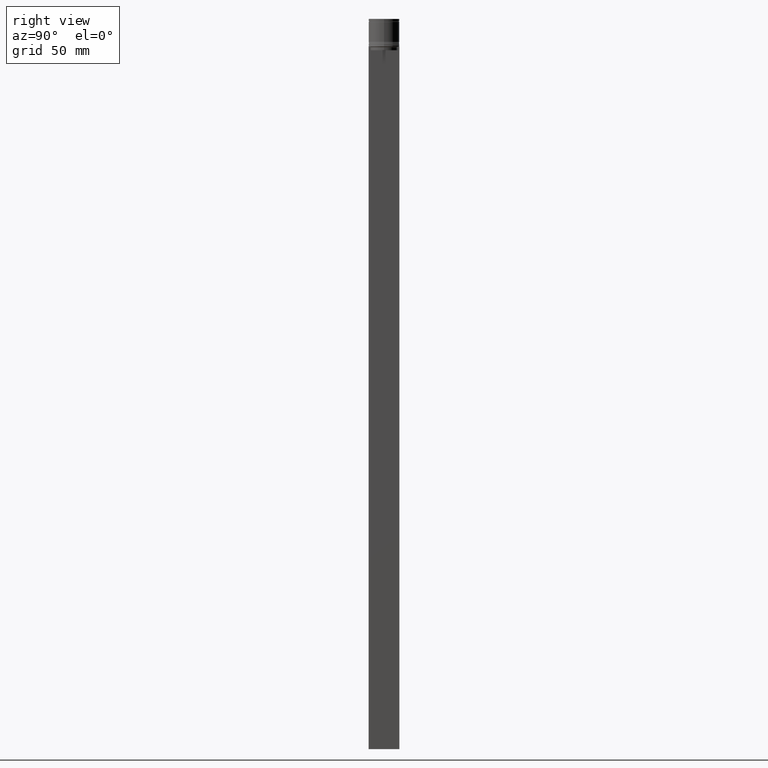
[diagram: clean part render]
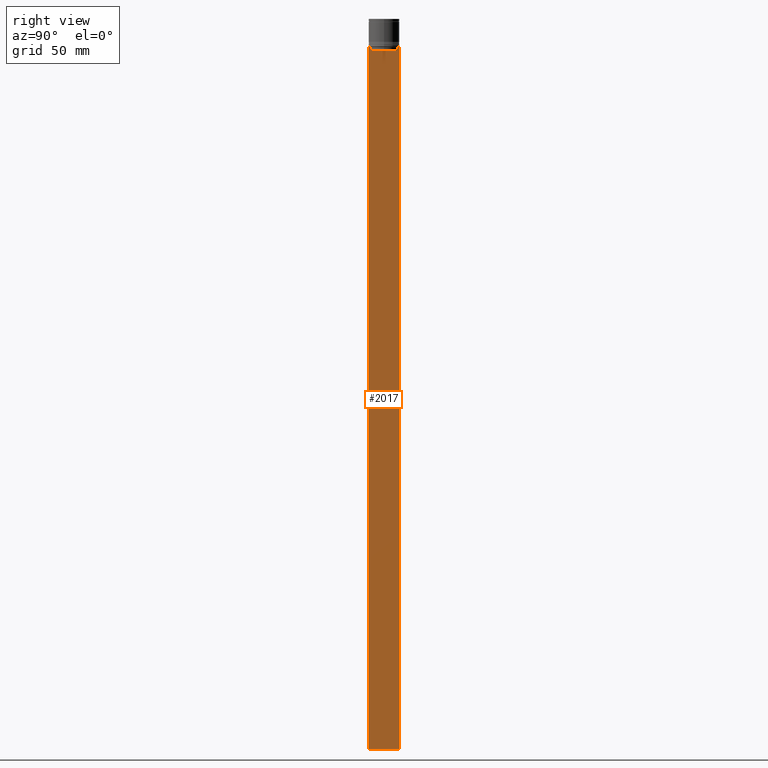
[diagram: same view with one face highlighted and labeled with its STEP entity id]
A machine part, right view. The second image highlights one B-rep face of the part: STEP entity #2017.
In plain terms, the highlighted planar face has unit normal (-1, 0, 0).
Its self-contained STEP definition (entity closure, byte-faithful):
#16 = ORIENTED_EDGE ( 'NONE', *, *, #2044, .T. ) ;
#34 = CARTESIAN_POINT ( 'NONE',  ( 0.5000000000000000000, -11.22219891450653151, -22.66667035398018726 ) ) ;
#100 = VERTEX_POINT ( 'NONE', #1619 ) ;
#150 = CARTESIAN_POINT ( 'NONE',  ( 0.5000000000000000000, -12.49999999999999289, 2.519992006393609874 ) ) ;
#158 = CARTESIAN_POINT ( 'NONE',  ( 0.5000000000000000000, -12.38991525394746596, -22.50000000000000000 ) ) ;
#163 = CARTESIAN_POINT ( 'NONE',  ( 0.5000000000000000000, -10.88852607105296855, -25.50000000000000000 ) ) ;
#170 = CARTESIAN_POINT ( 'NONE',  ( 0.5000000000000000000, 11.05536450345590715, -22.83333719074559554 ) ) ;
#176 = LINE ( 'NONE', #1818, #1760 ) ;
#178 = EDGE_CURVE ( 'NONE', #100, #1953, #176, .T. ) ;
#201 = FACE_OUTER_BOUND ( 'NONE', #655, .T. ) ;
#211 = ORIENTED_EDGE ( 'NONE', *, *, #1967, .T. ) ;
#222 = DIRECTION ( 'NONE',  ( 0.000000000000000000, 1.000000000000000000, 0.000000000000000000 ) ) ;
#256 = EDGE_CURVE ( 'NONE', #1855, #1543, #390, .T. ) ;
#312 = CARTESIAN_POINT ( 'NONE',  ( 0.5000000000000000000, 12.50000000000000711, -594.4999999999998863 ) ) ;
#327 = CARTESIAN_POINT ( 'NONE',  ( 0.5000000000000000000, -12.49999999999999289, -594.4999999999998863 ) ) ;
#328 = EDGE_CURVE ( 'NONE', #1032, #1902, #1507, .T. ) ;
#346 = DIRECTION ( 'NONE',  ( 0.000000000000000000, -1.000000000000000000, 0.000000000000000000 ) ) ;
#359 = LINE ( 'NONE', #1686, #1176 ) ;
#371 = DIRECTION ( 'NONE',  ( 0.000000000000000000, 0.000000000000000000, -1.000000000000000000 ) ) ;
#377 = ORIENTED_EDGE ( 'NONE', *, *, #256, .T. ) ;
#381 = CARTESIAN_POINT ( 'NONE',  ( 0.5000000000000000000, -12.49999999999999289, -22.50000000000000000 ) ) ;
#389 = CARTESIAN_POINT ( 'NONE',  ( 0.5000000000000000000, -10.88852607105297032, -22.99999999999999645 ) ) ;
#390 = LINE ( 'NONE', #712, #908 ) ;
#459 = CARTESIAN_POINT ( 'NONE',  ( 0.5000000000000000000, 10.88852607105297032, -22.99999999999999645 ) ) ;
#468 = DIRECTION ( 'NONE',  ( 0.000000000000000000, 0.000000000000000000, -1.000000000000000000 ) ) ;
#476 = VECTOR ( 'NONE', #1960, 1000.000000000000000 ) ;
#498 = LINE ( 'NONE', #1635, #1273 ) ;
#520 = CARTESIAN_POINT ( 'NONE',  ( 0.5000000000000000000, -12.49999999999999289, -22.50000000000000000 ) ) ;
#539 = DIRECTION ( 'NONE',  ( -1.000000000000000000, 0.000000000000000000, 0.000000000000000000 ) ) ;
#546 = ORIENTED_EDGE ( 'NONE', *, *, #1873, .T. ) ;
#626 = ORIENTED_EDGE ( 'NONE', *, *, #1920, .T. ) ;
#628 = CARTESIAN_POINT ( 'NONE',  ( 0.5000000000000000000, 11.22219891375843126, -22.66667035472756808 ) ) ;
#650 = ORIENTED_EDGE ( 'NONE', *, *, #1945, .F. ) ;
#655 = EDGE_LOOP ( 'NONE', ( #1722, #626, #1294, #211, #1080, #16, #1296, #950, #546, #377, #650, #1275 ) ) ;
#662 = VERTEX_POINT ( 'NONE', #1592 ) ;
#663 = LINE ( 'NONE', #1640, #476 ) ;
#667 = CARTESIAN_POINT ( 'NONE',  ( 0.5000000000000000000, -11.38902980942626897, -22.50000000000000000 ) ) ;
#709 = EDGE_CURVE ( 'NONE', #1952, #1463, #2021, .T. ) ;
#712 = CARTESIAN_POINT ( 'NONE',  ( 0.5000000000000000000, -12.49999999999999289, -594.4999999999998863 ) ) ;
#713 = DIRECTION ( 'NONE',  ( 0.000000000000000000, -1.000000000000000000, 0.000000000000000000 ) ) ;
#721 = LINE ( 'NONE', #381, #1031 ) ;
#722 = VERTEX_POINT ( 'NONE', #1707 ) ;
#758 = B_SPLINE_CURVE_WITH_KNOTS ( 'NONE', 3,
 ( #389, #1051, #34, #667 ),
 .UNSPECIFIED., .F., .F.,
 ( 4, 4 ),
 ( 0.05041323384703231408, 0.05112713601261610619 ),
 .UNSPECIFIED. ) ;
#821 = CARTESIAN_POINT ( 'NONE',  ( 0.5000000000000000000, -12.49999999999999289, -22.50000000000000000 ) ) ;
#874 = VECTOR ( 'NONE', #1295, 1000.000000000000000 ) ;
#908 = VECTOR ( 'NONE', #222, 1000.000000000000000 ) ;
#913 = B_SPLINE_CURVE_WITH_KNOTS ( 'NONE', 3,
 ( #1929, #628, #170, #459 ),
 .UNSPECIFIED., .F., .F.,
 ( 4, 4 ),
 ( 0.01935560801904635808, 0.02006307108468587813 ),
 .UNSPECIFIED. ) ;
#950 = ORIENTED_EDGE ( 'NONE', *, *, #1652, .T. ) ;
#1031 = VECTOR ( 'NONE', #713, 1000.000000000000000 ) ;
#1032 = VERTEX_POINT ( 'NONE', #1806 ) ;
#1036 = EDGE_CURVE ( 'NONE', #1700, #100, #1794, .T. ) ;
#1047 = EDGE_CURVE ( 'NONE', #1117, #662, #663, .T. ) ;
#1051 = CARTESIAN_POINT ( 'NONE',  ( 0.5000000000000000000, -11.05536450423839412, -22.83333718996392747 ) ) ;
#1080 = ORIENTED_EDGE ( 'NONE', *, *, #1047, .T. ) ;
#1117 = VERTEX_POINT ( 'NONE', #163 ) ;
#1163 = CARTESIAN_POINT ( 'NONE',  ( 0.5000000000000000000, 11.38902980942626897, -22.50000000000000000 ) ) ;
#1176 = VECTOR ( 'NONE', #2004, 1000.000000000000000 ) ;
#1183 = DIRECTION ( 'NONE',  ( 0.000000000000000000, -1.000000000000000000, 0.000000000000000000 ) ) ;
#1273 = VECTOR ( 'NONE', #468, 1000.000000000000000 ) ;
#1275 = ORIENTED_EDGE ( 'NONE', *, *, #1036, .T. ) ;
#1277 = CARTESIAN_POINT ( 'NONE',  ( 0.5000000000000000000, -11.38902980942626897, -22.50000000000000000 ) ) ;
#1294 = ORIENTED_EDGE ( 'NONE', *, *, #328, .T. ) ;
#1295 = DIRECTION ( 'NONE',  ( 0.000000000000000000, -1.000000000000000000, 0.000000000000000000 ) ) ;
#1296 = ORIENTED_EDGE ( 'NONE', *, *, #709, .T. ) ;
#1304 = CARTESIAN_POINT ( 'NONE',  ( 0.5000000000000000000, 10.88852607105296855, -25.50000000000000000 ) ) ;
#1360 = PLANE ( 'NONE',  #1577 ) ;
#1463 = VERTEX_POINT ( 'NONE', #158 ) ;
#1507 = LINE ( 'NONE', #1833, #1995 ) ;
#1525 = DIRECTION ( 'NONE',  ( 0.000000000000000000, 0.000000000000000000, 1.000000000000000000 ) ) ;
#1543 = VERTEX_POINT ( 'NONE', #312 ) ;
#1574 = CARTESIAN_POINT ( 'NONE',  ( 0.5000000000000000000, 12.50000000000000711, -22.50000000000000000 ) ) ;
#1577 = AXIS2_PLACEMENT_3D ( 'NONE', #1996, #539, #1525 ) ;
#1592 = CARTESIAN_POINT ( 'NONE',  ( 0.5000000000000000000, -10.88852607105297032, -22.99999999999999645 ) ) ;
#1605 = DIRECTION ( 'NONE',  ( 0.000000000000000000, 0.000000000000000000, -1.000000000000000000 ) ) ;
#1619 = CARTESIAN_POINT ( 'NONE',  ( 0.5000000000000000000, 12.38991525394746596, -22.50000000000000000 ) ) ;
#1635 = CARTESIAN_POINT ( 'NONE',  ( 0.5000000000000000000, 12.50000000000000711, 2.519992006393609874 ) ) ;
#1640 = CARTESIAN_POINT ( 'NONE',  ( 0.5000000000000000000, -10.88852607105297032, 0.000000000000000000 ) ) ;
#1652 = EDGE_CURVE ( 'NONE', #1463, #722, #721, .T. ) ;
#1670 = VECTOR ( 'NONE', #1183, 1000.000000000000000 ) ;
#1686 = CARTESIAN_POINT ( 'NONE',  ( 0.5000000000000000000, 10.90000000000000924, -25.50000000000000000 ) ) ;
#1700 = VERTEX_POINT ( 'NONE', #1574 ) ;
#1707 = CARTESIAN_POINT ( 'NONE',  ( 0.5000000000000000000, -12.49999999999999289, -22.50000000000000000 ) ) ;
#1722 = ORIENTED_EDGE ( 'NONE', *, *, #178, .T. ) ;
#1760 = VECTOR ( 'NONE', #346, 1000.000000000000000 ) ;
#1794 = LINE ( 'NONE', #821, #874 ) ;
#1800 = LINE ( 'NONE', #150, #1975 ) ;
#1806 = CARTESIAN_POINT ( 'NONE',  ( 0.5000000000000000000, 10.88852607105297032, -22.99999999999999645 ) ) ;
#1818 = CARTESIAN_POINT ( 'NONE',  ( 0.5000000000000000000, -12.49999999999999289, -22.50000000000000000 ) ) ;
#1833 = CARTESIAN_POINT ( 'NONE',  ( 0.5000000000000000000, 10.88852607105297032, 0.000000000000000000 ) ) ;
#1855 = VERTEX_POINT ( 'NONE', #327 ) ;
#1873 = EDGE_CURVE ( 'NONE', #722, #1855, #1800, .T. ) ;
#1902 = VERTEX_POINT ( 'NONE', #1304 ) ;
#1920 = EDGE_CURVE ( 'NONE', #1953, #1032, #913, .T. ) ;
#1929 = CARTESIAN_POINT ( 'NONE',  ( 0.5000000000000000000, 11.38902980942626897, -22.50000000000000000 ) ) ;
#1945 = EDGE_CURVE ( 'NONE', #1700, #1543, #498, .T. ) ;
#1952 = VERTEX_POINT ( 'NONE', #1277 ) ;
#1953 = VERTEX_POINT ( 'NONE', #1163 ) ;
#1960 = DIRECTION ( 'NONE',  ( -0.000000000000000000, -0.000000000000000000, 1.000000000000000000 ) ) ;
#1967 = EDGE_CURVE ( 'NONE', #1902, #1117, #359, .T. ) ;
#1975 = VECTOR ( 'NONE', #1605, 1000.000000000000000 ) ;
#1995 = VECTOR ( 'NONE', #371, 1000.000000000000000 ) ;
#1996 = CARTESIAN_POINT ( 'NONE',  ( 0.5000000000000000000, -12.49999999999999289, 2.519992006393609874 ) ) ;
#2004 = DIRECTION ( 'NONE',  ( 0.000000000000000000, -1.000000000000000000, 0.000000000000000000 ) ) ;
#2017 = ADVANCED_FACE ( 'NONE', ( #201 ), #1360, .F. ) ;
#2021 = LINE ( 'NONE', #520, #1670 ) ;
#2044 = EDGE_CURVE ( 'NONE', #662, #1952, #758, .T. ) ;